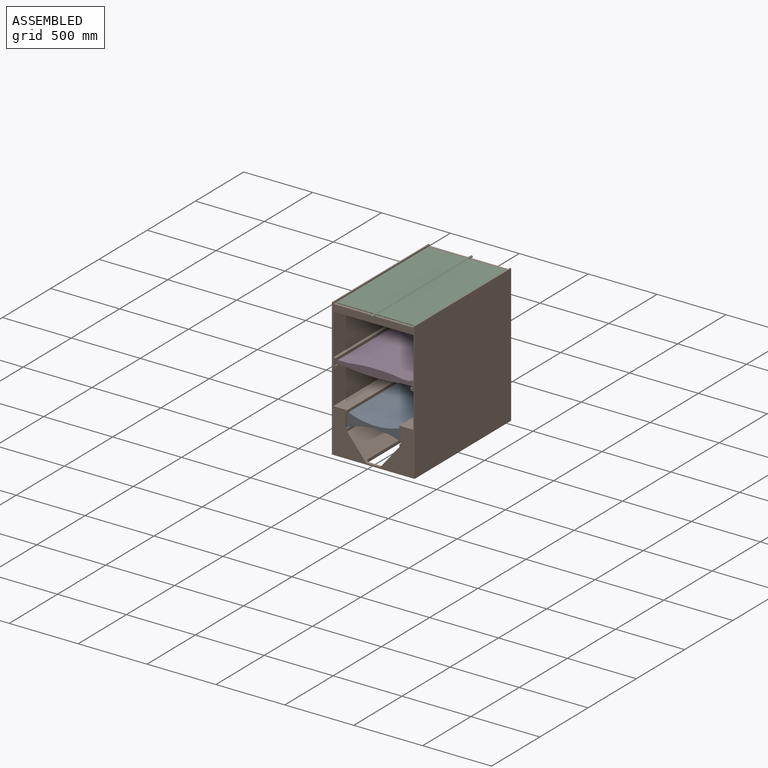
[diagram: assembled view]
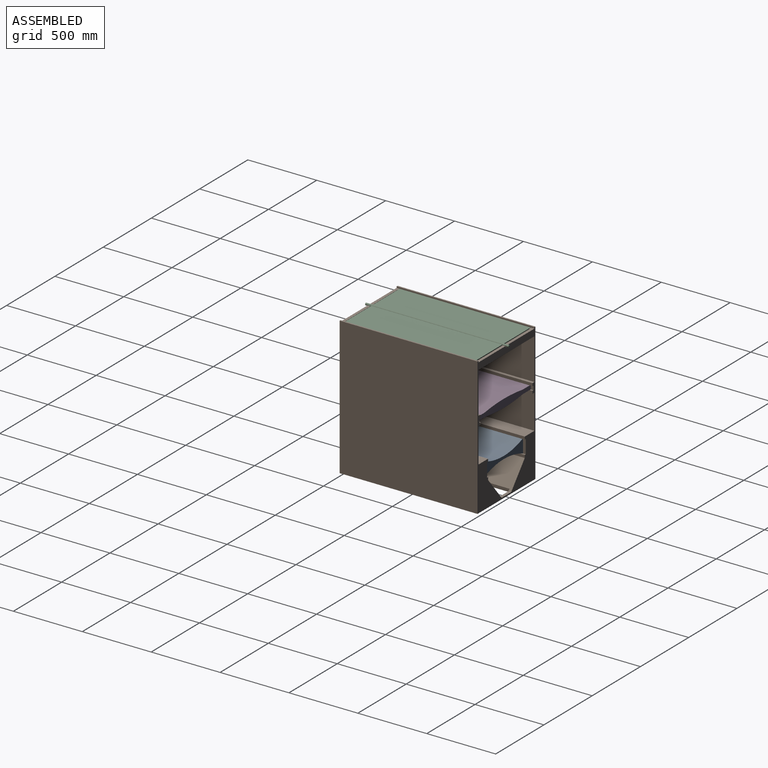
[diagram: assembled view, second angle]
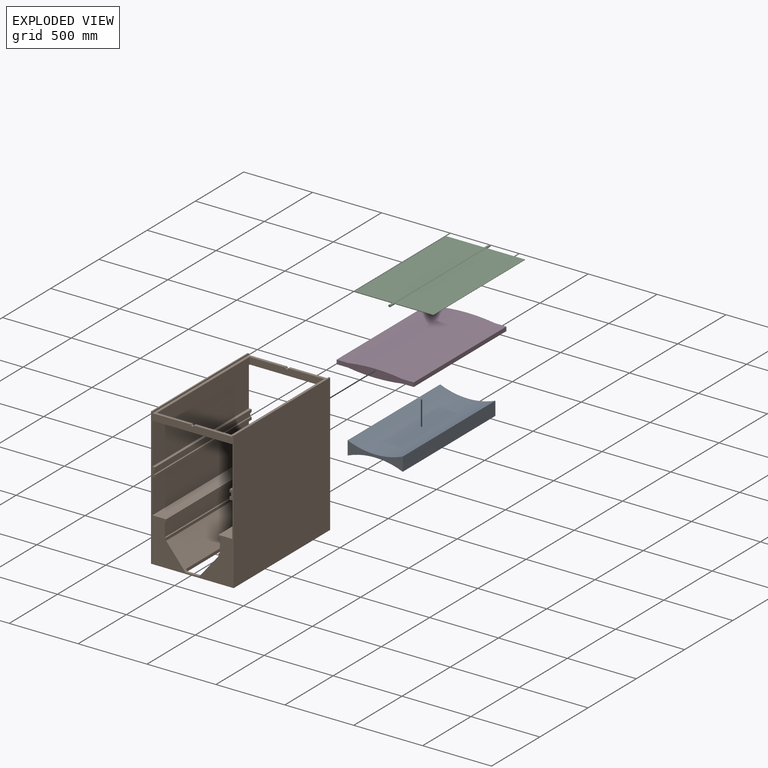
[diagram: exploded view]
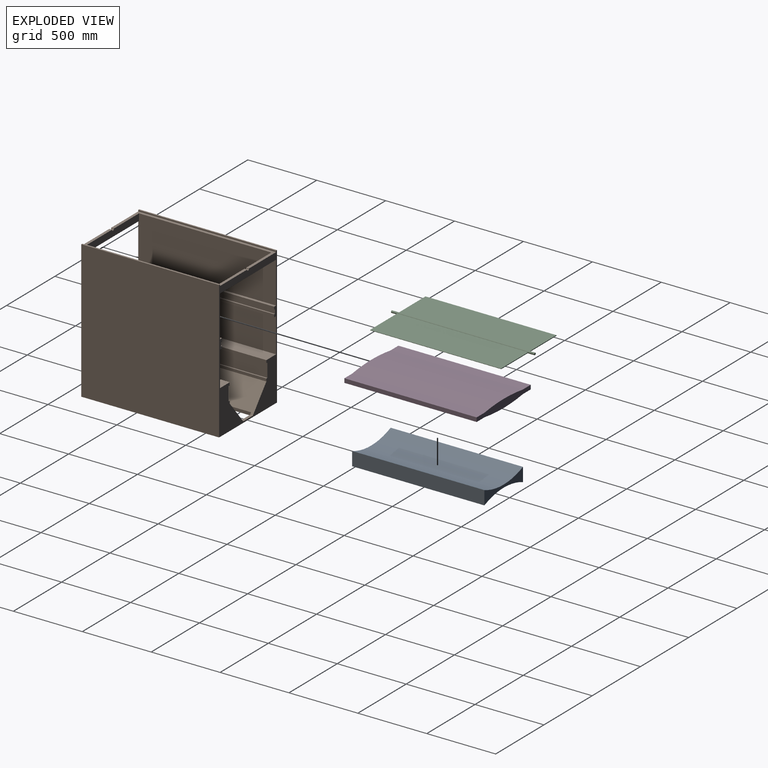
[diagram: exploded view, second angle]
ASSEMBLY  parts=4 mates=3
PART A: 6 faces, bbox 400x960x100 mm
  f0: plane 960x100mm, normal (1,0,0), area 96000mm2, adj f1,f3,f4,f5
  f1: cylinder r=520mm len=960mm, axis (0,1,0), area 394159.5mm2, adj f0,f2,f4,f5
  f2: plane 960x100mm, normal (-1,0,0), area 96000mm2, adj f1,f3,f4,f5
  f3: cylinder r=520mm len=960mm, axis (0,1,0), area 394159.5mm2, adj f0,f2,f4,f5
  f4: plane 400x100mm, normal (0,-1,0), area 18497mm2, adj f0,f1,f2,f3
  f5: plane 400x100mm, normal (0,1,0), area 18497mm2, adj f0,f1,f2,f3
PART B: 56 faces, bbox 600x1000x1000 mm
  f0: plane 1000x600mm, normal (0,0,-1), area 484800mm2, adj f9,f10,f46,f47,f52,f53,f54,f55
  f1: plane 1000x170mm, normal (-0.77,0,0.64), area 205125.9mm2, adj f2,f29,f30,f46,f47,f52,f53,f55
  f2: plane 100x20mm, normal (0,0,1), area 2000mm2, adj f1,f3,f47,f53
  f3: plane 1000x170mm, normal (0.77,0,0.64), area 205125.9mm2, adj f2,f30,f31,f46,f47,f53,f54,f55
  f4: plane 1000x280mm, normal (0,0,1), area 30400mm2, adj f5,f12,f45,f46,f47,f48,f50,f51
  f5: cylinder r=10mm len=20mm, axis (0,1,0), area 628.3mm2, adj f4,f6,f47,f50
  f6: plane 1000x280mm, normal (0,0,1), area 30400mm2, adj f5,f7,f45,f46,f47,f49,f50,f51
  f7: plane 1000x10mm, normal (1,0,0), area 10000mm2, adj f6,f8,f46,f47
  f8: plane 1000x10mm, normal (0,0,1), area 10000mm2, adj f7,f9,f46,f47
  f9: plane 1000x1000mm, normal (-1,0,0), area 1000000mm2, adj f0,f8,f46,f47
  f10: plane 1000x1000mm, normal (1,0,0), area 1000000mm2, adj f0,f11,f46,f47
  f11: plane 1000x10mm, normal (0,0,1), area 10000mm2, adj f10,f12,f46,f47
  f12: plane 1000x10mm, normal (-1,0,0), area 10000mm2, adj f4,f11,f46,f47
  f13: plane 1000x300mm, normal (1,0,0), area 300000mm2, adj f14,f44,f46,f47
  f14: plane 1000x580mm, normal (0,0,-1), area 61600mm2, adj f13,f15,f46,f47,f48,f49,f50,f51
  f15: plane 1000x300mm, normal (-1,0,0), area 300000mm2, adj f14,f16,f46,f47
  f16: plane 1000x20mm, normal (0,0,1), area 20000mm2, adj f15,f17,f46,f47
  f17: plane 1000x20mm, normal (-1,0,0), area 20000mm2, adj f16,f18,f46,f47
  f18: plane 1000x10mm, normal (0,0,-1), area 10000mm2, adj f17,f19,f46,f47
  f19: plane 1000x30mm, normal (-1,0,0), area 30000mm2, adj f18,f20,f46,f47
  f20: plane 1000x10mm, normal (0,0,1), area 10000mm2, adj f19,f21,f46,f47
  f21: plane 1000x20mm, normal (-1,0,0), area 20000mm2, adj f20,f22,f46,f47
  f22: plane 1000x20mm, normal (0,0,-1), area 20000mm2, adj f21,f23,f46,f47
  f23: plane 1000x250mm, normal (-1,0,0), area 250000mm2, adj f22,f24,f46,f47
  f24: plane 1000x100mm, normal (0,0,1), area 100000mm2, adj f23,f25,f46,f47
  f25: plane 1000x20mm, normal (-1,0,0), area 20000mm2, adj f24,f26,f46,f47
  f26: plane 1000x10mm, normal (0,0,-1), area 10000mm2, adj f25,f27,f46,f47
  f27: plane 1000x100mm, normal (-1,0,0), area 100000mm2, adj f26,f28,f46,f47
  f28: plane 1000x10mm, normal (0,0,1), area 10000mm2, adj f27,f29,f46,f47
  f29: plane 1000x20mm, normal (-1,0,0), area 20000mm2, adj f1,f28,f46,f47
  f30: plane 100x20mm, normal (0,0,1), area 2000mm2, adj f1,f3,f46,f55
  f31: plane 1000x20mm, normal (1,0,0), area 20000mm2, adj f3,f32,f46,f47
  f32: plane 1000x10mm, normal (0,0,1), area 10000mm2, adj f31,f33,f46,f47
  f33: plane 1000x100mm, normal (1,0,0), area 100000mm2, adj f32,f34,f46,f47
  f34: plane 1000x10mm, normal (0,0,-1), area 10000mm2, adj f33,f35,f46,f47
  f35: plane 1000x20mm, normal (1,0,0), area 20000mm2, adj f34,f36,f46,f47
  f36: plane 1000x100mm, normal (0,0,1), area 100000mm2, adj f35,f37,f46,f47
  f37: plane 1000x250mm, normal (1,0,0), area 250000mm2, adj f36,f38,f46,f47
  f38: plane 1000x20mm, normal (0,0,-1), area 20000mm2, adj f37,f39,f46,f47
  f39: plane 1000x20mm, normal (1,0,0), area 20000mm2, adj f38,f40,f46,f47
  f40: plane 1000x10mm, normal (0,0,1), area 10000mm2, adj f39,f41,f46,f47
  f41: plane 1000x30mm, normal (1,0,0), area 30000mm2, adj f40,f42,f46,f47
  f42: plane 1000x10mm, normal (0,0,-1), area 10000mm2, adj f41,f43,f46,f47
  f43: plane 1000x20mm, normal (1,0,0), area 20000mm2, adj f42,f44,f46,f47
  f44: plane 1000x20mm, normal (0,0,1), area 20000mm2, adj f13,f43,f46,f47
  f45: cylinder r=10mm len=20mm, axis (0,1,0), area 628.3mm2, adj f4,f6,f46,f51
  f46: plane 1000x600mm, normal (0,-1,0), area 140642.9mm2, adj f0,f1,f3,f4,f6,f7,f8,f9
  f47: plane 1000x600mm, normal (0,1,0), area 140642.9mm2, adj f0,f1,f2,f3,f4,f5,f6,f7
  f48: plane 960x50mm, normal (-1,0,0), area 48000mm2, adj f4,f14,f50,f51
  f49: plane 960x50mm, normal (1,0,0), area 48000mm2, adj f6,f14,f50,f51
  f50: plane 540x50mm, normal (0,-1,0), area 26842.9mm2, adj f4,f5,f6,f14,f48,f49
  f51: plane 540x50mm, normal (0,1,0), area 26842.9mm2, adj f4,f6,f14,f45,f48,f49
  f52: plane 960x22.14mm, normal (-1,0,0), area 21257.1mm2, adj f0,f1,f53,f55
  f53: plane 120x22.14mm, normal (0,-1,0), area 1321.4mm2, adj f0,f1,f2,f3,f52,f54
  f54: plane 960x22.14mm, normal (1,0,0), area 21257.1mm2, adj f0,f3,f53,f55
  f55: plane 120x22.14mm, normal (0,1,0), area 1321.4mm2, adj f0,f1,f3,f30,f52,f54
PART C: 13 faces, bbox 575x1040x16 mm
  f0: plane 950x277.4mm, normal (0,0,1), area 263530.6mm2, adj f2,f3,f4,f5
  f1: plane 950x277.4mm, normal (0,0,-1), area 263530.6mm2, adj f2,f3,f4,f5
  f2: plane 279.9x5mm, normal (0,-1,0), area 1395.5mm2, adj f0,f1,f4,f5
  f3: plane 279.9x5mm, normal (0,1,0), area 1395.5mm2, adj f0,f1,f4,f5
  f4: cylinder r=2.5mm len=950mm, axis (0,1,0), area 7461.3mm2, adj f0,f1,f2,f3
  f5: cylinder r=8mm len=1040mm, axis (0,1,0), area 42614.3mm2, adj f0,f1,f2,f3,f6,f7,f9,f10
  f6: plane 16x16mm, normal (0,-1,0), area 201.1mm2, adj f5
  f7: plane 16x16mm, normal (0,1,0), area 201.1mm2, adj f5
  f8: cylinder r=2.5mm len=950mm, axis (0,1,0), area 7461.3mm2, adj f9,f10,f11,f12
  f9: plane 279.9x5mm, normal (0,-1,0), area 1395.5mm2, adj f5,f8,f11,f12
  f10: plane 279.9x5mm, normal (0,1,0), area 1395.5mm2, adj f5,f8,f11,f12
  f11: plane 950x277.4mm, normal (0,0,-1), area 263530.6mm2, adj f5,f8,f9,f10
  f12: plane 950x277.4mm, normal (0,0,1), area 263530.6mm2, adj f5,f8,f9,f10
PART D: 10 faces, bbox 560x960x60 mm
  f0: plane 960x81.44mm, normal (0,0,1), area 78185mm2, adj f1,f7,f8,f9
  f1: cylinder r=1321.67mm len=960mm, axis (0,1,0), area 382678.8mm2, adj f0,f2,f8,f9
  f2: plane 960x81.44mm, normal (0,0,1), area 78185mm2, adj f1,f3,f8,f9
  f3: plane 960x30mm, normal (-1,0,0), area 28800mm2, adj f2,f4,f8,f9
  f4: plane 960x81.44mm, normal (0,0,-1), area 78185mm2, adj f3,f5,f8,f9
  f5: cylinder r=1321.67mm len=960mm, axis (0,1,0), area 382678.8mm2, adj f4,f6,f8,f9
  f6: plane 960x81.44mm, normal (0,0,-1), area 78185mm2, adj f5,f7,f8,f9
  f7: plane 960x30mm, normal (1,0,0), area 28800mm2, adj f0,f6,f8,f9
  f8: plane 560x60mm, normal (0,-1,0), area 24751.3mm2, adj f0,f1,f2,f3,f4,f5,f6,f7
  f9: plane 560x60mm, normal (0,1,0), area 24751.3mm2, adj f0,f1,f2,f3,f4,f5,f6,f7
PLACE A t=(38,4.21,-430.44)mm
PLACE B rot(axis=(0.25,0.95,0.17),0deg) t=(38,4.21,-9.4)mm
PLACE C t=(38,4.21,-9.4)mm
PLACE D rot(axis=(0.25,0.95,0.17),0deg) t=(38,4.21,-394.4)mm
MATE fastened D.f8 <-> B.f51  axis (0,-1,0) through (-242,-475.79,-409.4)mm
MATE revolute C.f5 <-> B.f5  axis (0,-1,0) through (38,-515.79,-9.4)mm
MATE fastened A.f4 <-> B.f55  axis (0,1,0) through (-162,-475.79,-799.4)mm
